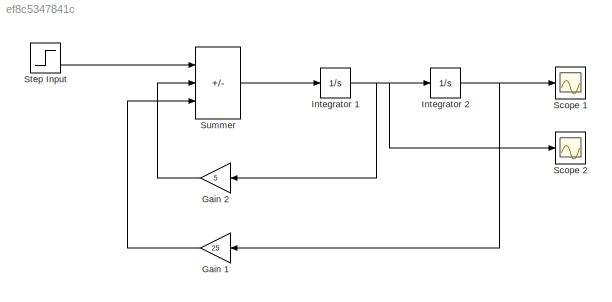
MODEL slx_ef8c5347841c
KIND model
CONFIG AbsTol = auto
CONFIG EnableMultiTasking = off
CONFIG FixedStep = auto
CONFIG MaxStep = auto
CONFIG MinStep = auto
CONFIG RelTol = 1e-3
CONFIG SampleTimeConstraint = Unconstrained
CONFIG SolverName = VariableStepAuto
CONFIG StartTime = 0.0
CONFIG StopTime = 10.0
BLOCK [Gain] Gain 1
  Gain = 25
BLOCK [Gain] Gain 2
  Gain = 5
BLOCK [Integrator] Integrator 1
  Ports = [1, 1]
BLOCK [Integrator] Integrator 2
  Ports = [1, 1]
BLOCK [Scope] Scope 1
  Floating = off
  NumInputPorts = 1
  Ports = [1]
  ScopeSpecificationString = Simulink.scopes.TimeScopeBlockCfg('CurrentConfiguration', extmgr.ConfigurationSet(extmgr.Configuration('Core','General UI',true),extmgr.Configuration('Core','Source UI',true),extmgr.Configuration('Sources','WiredSimulink',true,'DataLoggingVariableName','ScopeData1'),extmgr.Configuration('Visuals','Time Domain',true,'SerializedDisplays',{struct('MinYLimReal','-0.14485','MaxYLimReal','1.30364','YLab...<+1452ch>
BLOCK [Scope] Scope 2
  Floating = off
  NumInputPorts = 1
  Ports = [1]
  ScopeSpecificationString = Simulink.scopes.TimeScopeBlockCfg('CurrentConfiguration', extmgr.ConfigurationSet(extmgr.Configuration('Core','General UI',true),extmgr.Configuration('Core','Source UI',true),extmgr.Configuration('Sources','WiredSimulink',true),extmgr.Configuration('Visuals','Time Domain',true,'SerializedDisplays',{struct('MinYLimReal','-0.78368','MaxYLimReal','3.07118','YLabelReal','','MinYLimMag','0.00000','MaxY...<+1413ch>
BLOCK [Step] Step Input
  After = 25
  Before = 25
  SampleTime = 0
  Time = 100
BLOCK [Sum] Summer
  IconShape = rectangular
  Inputs = +--
  Ports = [3, 1]
LINE Gain 1:1 -> Summer:3
LINE Gain 2:1 -> Summer:2
NET Integrator 1:1 -> Gain 2:1, Integrator 2:1, Scope 2:1
NET Integrator 2:1 -> Gain 1:1, Scope 1:1
LINE Step Input:1 -> Summer:1
LINE Summer:1 -> Integrator 1:1
note: NET lines group one-source signal fan-out (src -> all destinations, sorted); 1:1 wires keep LINE
